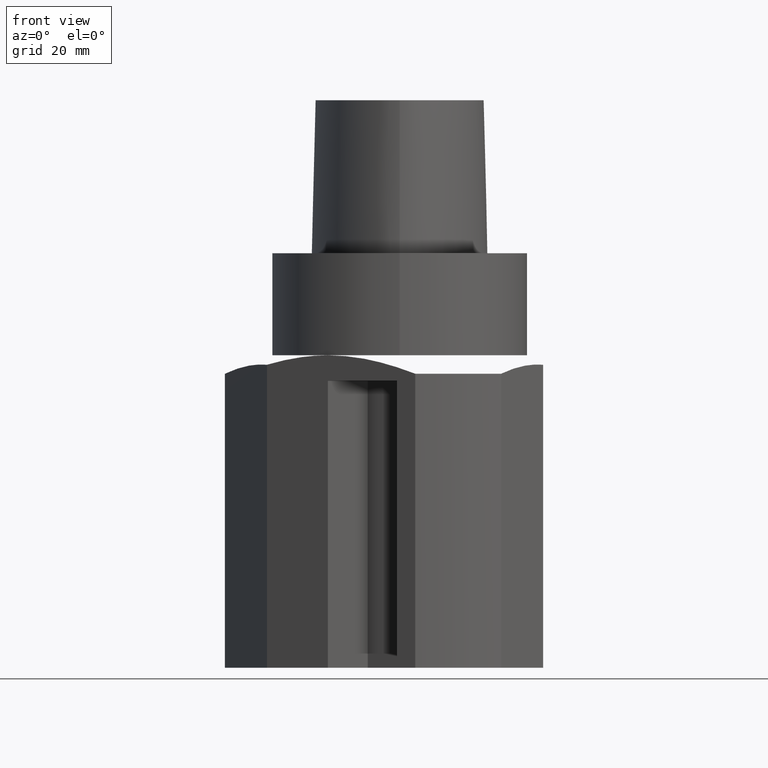
[diagram: clean part render]
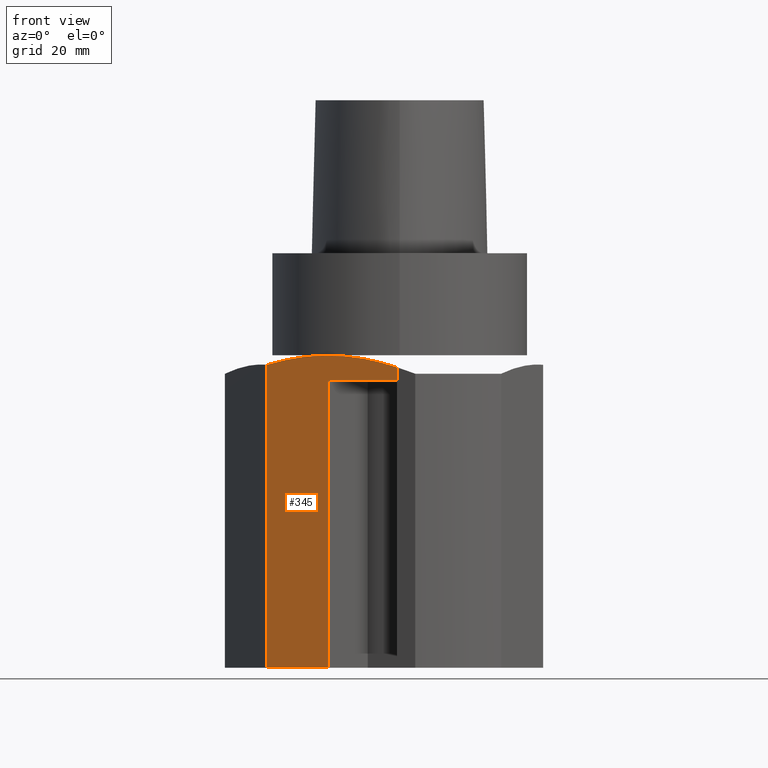
[diagram: same view with one face highlighted and labeled with its STEP entity id]
A machine part, front view. The second image highlights one B-rep face of the part: STEP entity #345.
In plain terms, the highlighted planar face has unit normal (-0.5, -0.866, 0).
Its self-contained STEP definition (entity closure, byte-faithful):
#129=EDGE_CURVE('240[2]',#383,#384,#385,.T.);
#174=EDGE_CURVE('240[2]',#455,#456,#457,.T.);
#185=EDGE_CURVE('240[2]',#410,#441,#473,.T.);
#229=EDGE_CURVE('240[2]',#456,#441,#538,.T.);
#256=EDGE_CURVE('240[2]',#410,#571,#572,.T.);
#260=EDGE_CURVE('240[2]',#383,#455,#576,.T.);
#281=EDGE_CURVE('240[2]',#384,#571,#602,.T.);
#345=ADVANCED_FACE('240[2]',(#675),#676,.T.);
#383=VERTEX_POINT('',#709);
#384=VERTEX_POINT('',#710);
#385=LINE('',#711,#712);
#410=VERTEX_POINT('',#1147);
#441=VERTEX_POINT('',#1190);
#455=VERTEX_POINT('',#1209);
#456=VERTEX_POINT('',#1210);
#457=LINE('',#1211,#1212);
#473=LINE('',#1245,#1246);
#538=LINE('',#1351,#1352);
#571=VERTEX_POINT('',#1460);
#572=LINE('',#1461,#1462);
#576=LINE('',#1469,#1470);
#602=(B_SPLINE_CURVE(3,(#1519,#1520,#1521,#1522,#1523,#1524,#1525),.UNSPECIFIED.,.F.,.F.)B_SPLINE_CURVE_WITH_KNOTS((4,3,4),(6.03083981348809,50.701122357519,56.2276893743845),.UNSPECIFIED.)RATIONAL_B_SPLINE_CURVE((1.0,1.08123802320123,1.09371041746106,1.03741718277949,1.03741718277949,1.03741718277949,1.03741718277949))BOUNDED_CURVE()REPRESENTATION_ITEM('')GEOMETRIC_REPRESENTATION_ITEM()CURVE());
#675=FACE_OUTER_BOUND('',#2264,.T.);
#676=PLANE('',#2265);
#709=CARTESIAN_POINT('',(-0.849364907480808,-51.4711439609535,-129.820375028397));
#710=CARTESIAN_POINT('',(-0.849364907480825,-51.4711439609534,-35.7401656409896));
#711=CARTESIAN_POINT('',(-0.849364907480808,-51.4711439609535,-129.820374840711));
#712=VECTOR('',#2297,94.0802091997214);
#1147=CARTESIAN_POINT('',(-41.6025421760538,-27.9422860963007,-130.0));
#1190=CARTESIAN_POINT('',(-22.5000003427979,-38.9711437640436,-130.0));
#1209=CARTESIAN_POINT('',(-0.849366118015883,-51.4711432597016,-40.0000025629997));
#1210=CARTESIAN_POINT('',(-22.5000003427979,-38.9711437640436,-40.0000025629997));
#1211=CARTESIAN_POINT('',(-0.849366118015834,-51.4711432597015,-40.0000025629997));
#1212=VECTOR('',#2361,24.999998994535);
#1245=CARTESIAN_POINT('',(-36.9615245704847,-30.6217788597298,-130.0));
#1246=VECTOR('',#2370,16.6987298107778);
#1351=CARTESIAN_POINT('',(-22.5000003427979,-38.9711437640436,-40.0000025629997));
#1352=VECTOR('',#2440,89.9999974370003);
#1460=CARTESIAN_POINT('',(-41.6025421760538,-27.9422860963007,-34.9533204596932));
#1461=CARTESIAN_POINT('',(-41.6025421760538,-27.9422860963007,-310.0));
#1462=VECTOR('',#2464,1.0);
#1469=CARTESIAN_POINT('',(-0.84936611801593,-51.4711432597015,-129.820375028397));
#1470=VECTOR('',#2466,89.8203724653973);
#1519=CARTESIAN_POINT('',(-0.849364907480825,-51.4711439609534,-35.7401656409896));
#1520=CARTESIAN_POINT('',(-13.7758536998385,-44.0080321782903,-31.5550601137299));
#1521=CARTESIAN_POINT('',(-25.0462660167969,-37.5010565919844,-30.9675781349572));
#1522=CARTESIAN_POINT('',(-36.9615245083222,-30.6217788956193,-33.7311374784036));
#1523=CARTESIAN_POINT('',(-38.515660869792,-29.7244978491214,-34.091595295226));
#1524=CARTESIAN_POINT('',(-40.063326184074,-28.8309528634587,-34.5016740476566));
#1525=CARTESIAN_POINT('',(-41.6025421760538,-27.9422860963007,-34.9533204596932));
#2264=EDGE_LOOP('',(#2596,#2597,#2598,#2599,#2600,#2601,#2602));
#2265=AXIS2_PLACEMENT_3D('',#2603,#2604,#2605);
#2297=DIRECTION('',(0.0,0.0,1.0));
#2361=DIRECTION('',(-0.86602540382161,0.499999999935617,0.0));
#2370=DIRECTION('',(0.86602540382161,-0.499999999935618,0.0));
#2440=DIRECTION('',(0.0,0.0,-1.0));
#2464=DIRECTION('',(-6.12323399573678E-017,1.22464679914735E-016,1.0));
#2466=DIRECTION('',(0.0,0.0,1.0));
#2596=ORIENTED_EDGE('',*,*,#260,.F.);
#2597=ORIENTED_EDGE('',*,*,#129,.T.);
#2598=ORIENTED_EDGE('',*,*,#281,.T.);
#2599=ORIENTED_EDGE('',*,*,#256,.F.);
#2600=ORIENTED_EDGE('',*,*,#185,.T.);
#2601=ORIENTED_EDGE('',*,*,#229,.F.);
#2602=ORIENTED_EDGE('',*,*,#174,.F.);
#2603=CARTESIAN_POINT('',(-18.9054447384742,-41.0464614094607,-310.0));
#2604=DIRECTION('',(-0.499999999935618,-0.86602540382161,7.54413539023012E-017));
#2605=DIRECTION('',(-0.86602540382161,0.499999999935618,0.0));